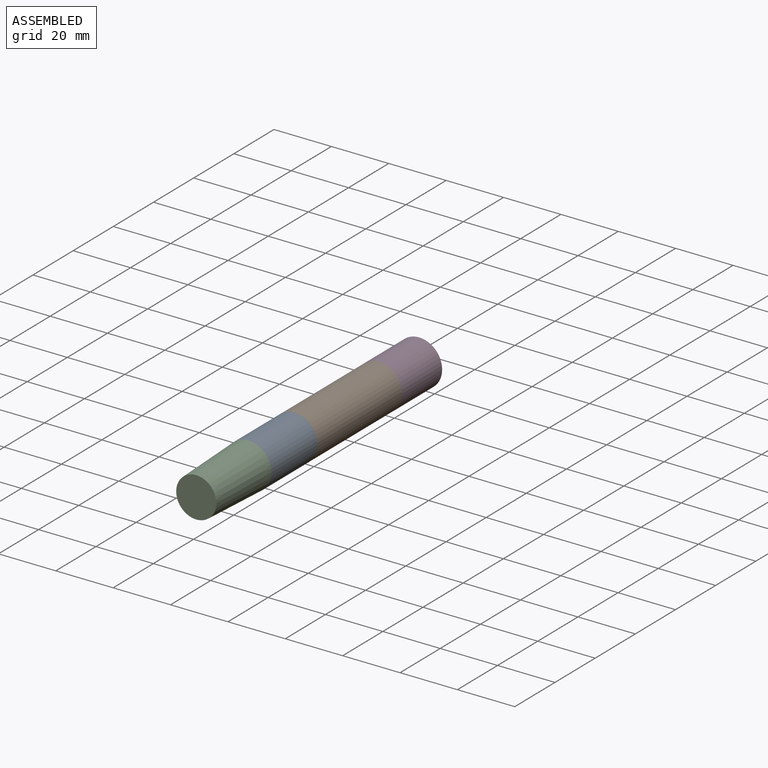
[diagram: assembled view]
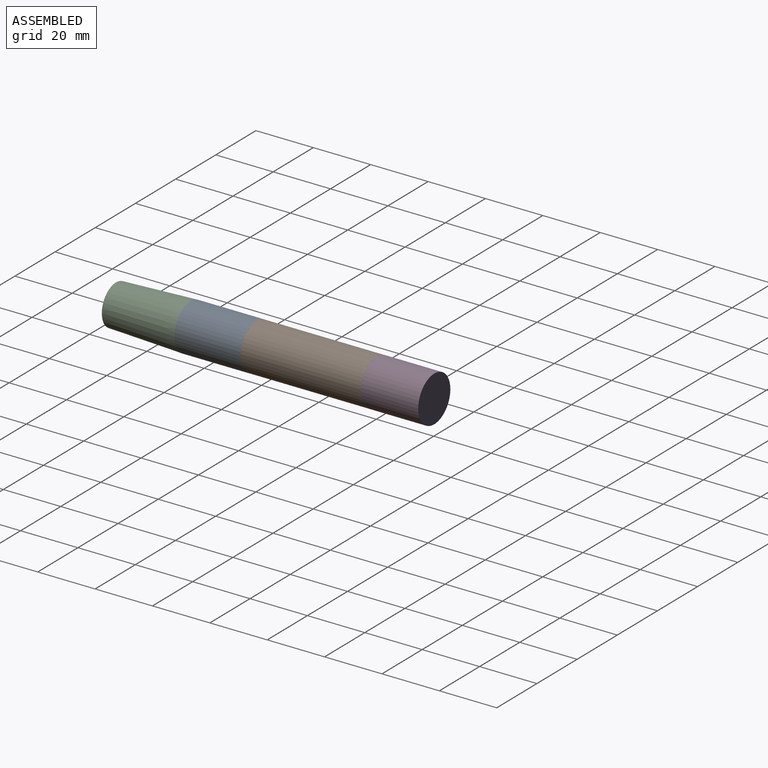
[diagram: assembled view, second angle]
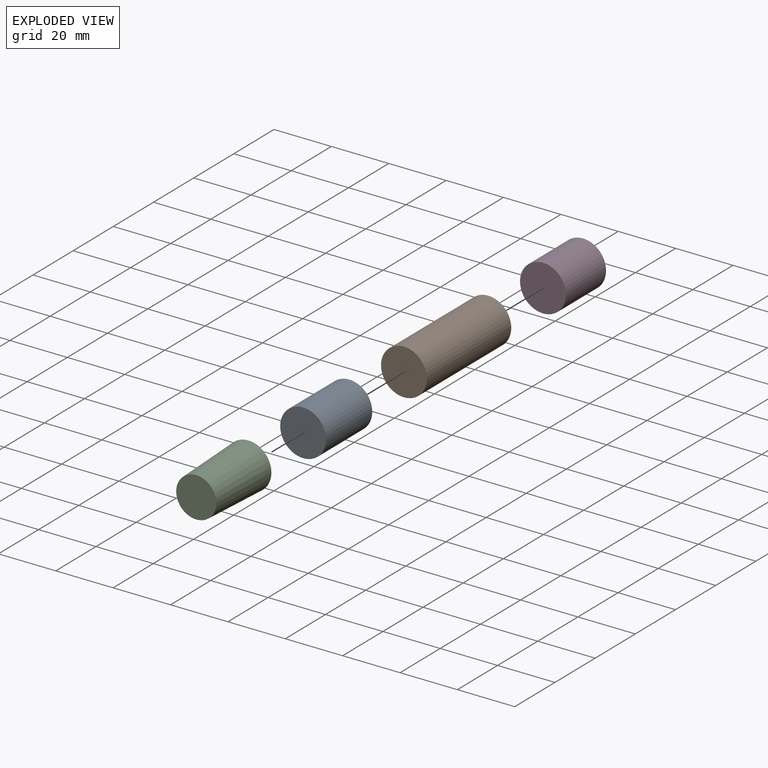
[diagram: exploded view]
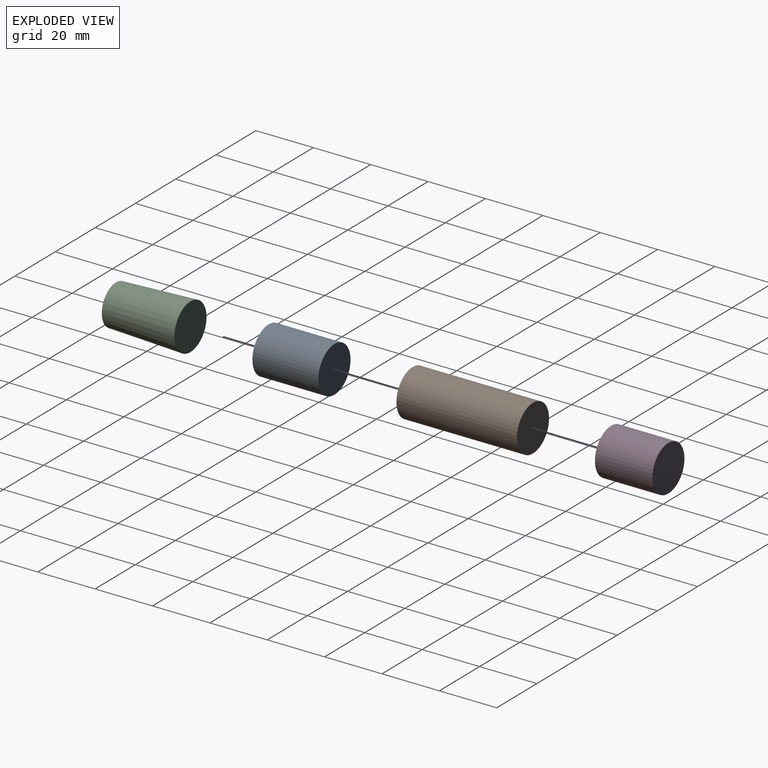
[diagram: exploded view, second angle]
ASSEMBLY  parts=4 mates=6
PART A: 3 faces, bbox 16x23x16 mm
  f0: cylinder r=8mm len=23mm, axis (0,1,0), area 1156.1mm2, adj f1,f2
  f1: plane 16x16mm, normal (0,-1,0), area 201.1mm2, adj f0
  f2: plane 16x16mm, normal (0,1,0), area 201.1mm2, adj f0
PART B: 3 faces, bbox 16x42x16 mm
  f0: cylinder r=8mm len=42mm, axis (0,1,0), area 2111.2mm2, adj f1,f2
  f1: plane 16x16mm, normal (0,-1,0), area 201.1mm2, adj f0
  f2: plane 16x16mm, normal (0,1,0), area 201.1mm2, adj f0
PART C: 3 faces, bbox 16x16x26 mm
  f0: plane 14x14mm, normal (0,0,1), area 153.9mm2, adj f2
  f1: plane 16x16mm, normal (0,0,-1), area 201.1mm2, adj f2
  f2: cone r=8mm half-angle=2.2deg, axis (0,0,-1), area 1226.1mm2, adj f0,f1
PART D: 3 faces, bbox 16x20x16 mm
  f0: cylinder r=8mm len=20mm, axis (0,1,0), area 1005.3mm2, adj f1,f2
  f1: plane 16x16mm, normal (0,-1,0), area 201.1mm2, adj f0
  f2: plane 16x16mm, normal (0,1,0), area 201.1mm2, adj f0
PLACE A rot(axis=(0,1,0),0deg) t=(-3.68,-44.36,-1.86)mm
PLACE B rot(axis=(0,1,0),90deg) t=(-3.68,-2.36,-1.86)mm
PLACE C rot(axis=(1,0,0),90deg) t=(-3.68,-67.36,-1.86)mm
PLACE D t=(-3.68,17.64,-1.86)mm fixed
MATE planar D.f0 <-> B.f0  axis (0,-1,0) through (-3.68,-2.36,-1.86)mm
MATE cylindrical C.f2 <-> A.f0  axis (0,1,0) through (-3.68,-67.36,-1.86)mm
MATE cylindrical A.f0 <-> B.f0  axis (0,1,0) through (-3.68,-55.86,-1.86)mm
MATE planar A.f0 <-> B.f0  axis (0,1,0) through (-3.68,-44.36,-1.86)mm
MATE cylindrical B.f0 <-> D.f0  axis (0,1,0) through (-3.68,-23.36,-1.86)mm
MATE planar C.f2 <-> A.f0  axis (0,1,0) through (-3.68,-67.36,-1.86)mm
